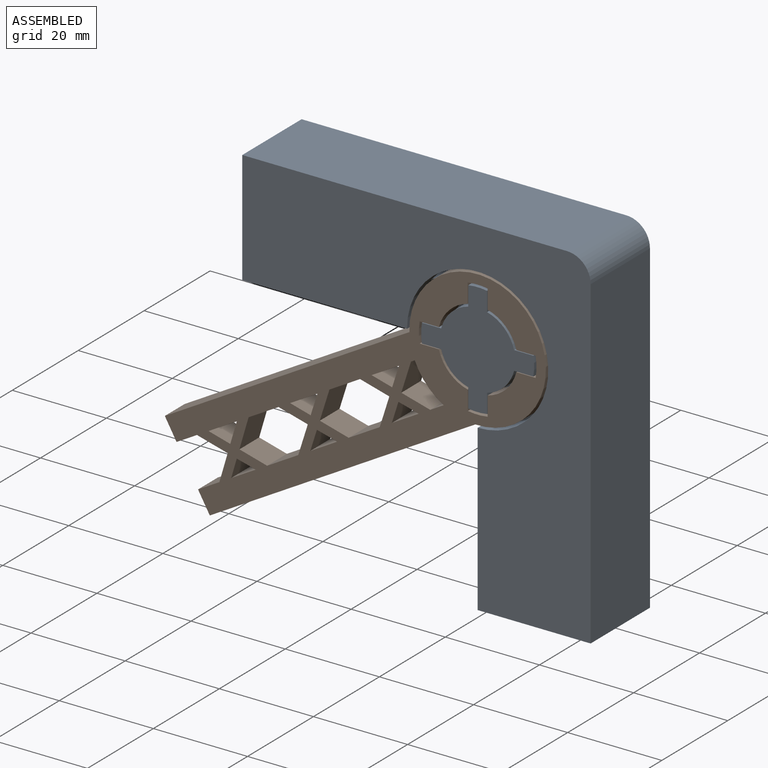
[diagram: assembled view]
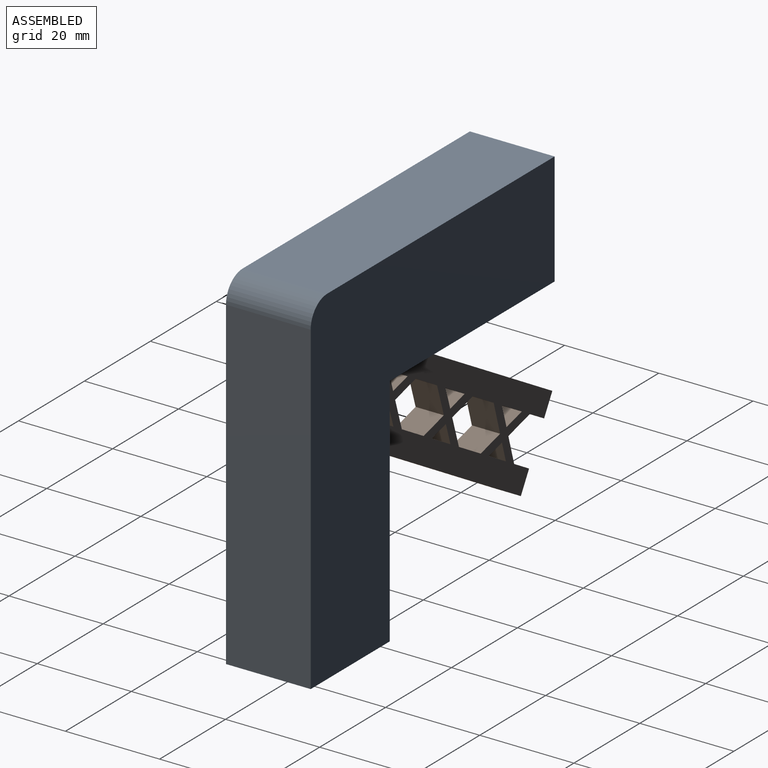
[diagram: assembled view, second angle]
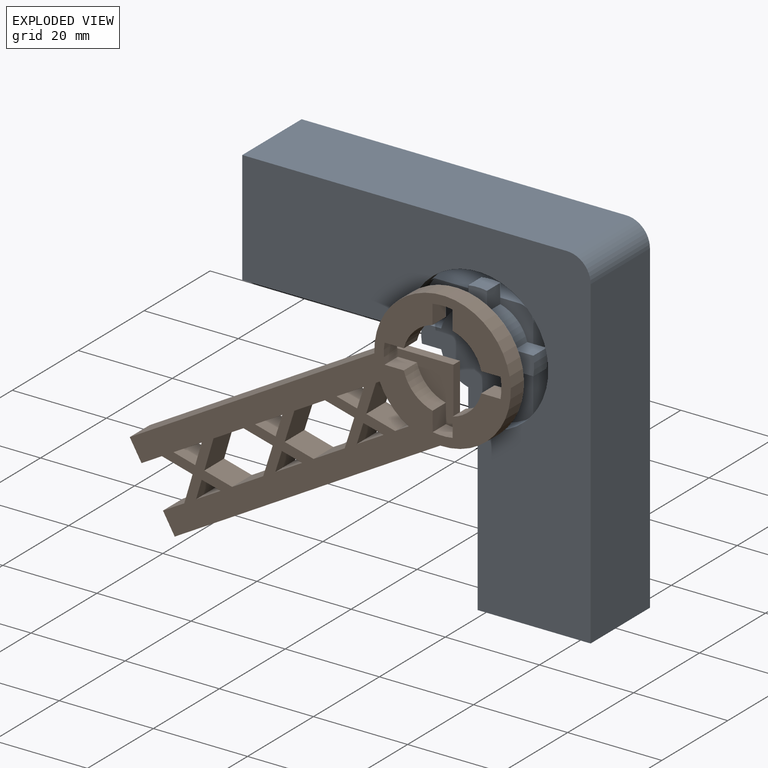
[diagram: exploded view]
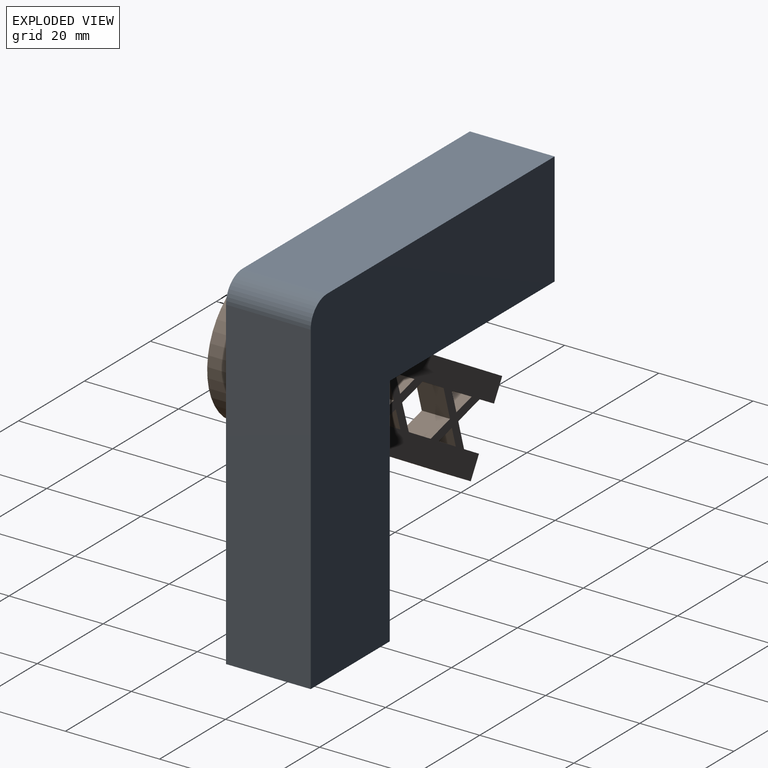
[diagram: exploded view, second angle]
ASSEMBLY  parts=2 mates=2
PART A: 52 faces, bbox 74x18x74 mm
  f0: plane 7x7mm, normal (0,1,0), area 24.5mm2, adj f6,f23,f24,f36,f40,f43
  f1: plane 13x9mm, normal (0,1,0), area 65.9mm2, adj f3,f9,f23,f34,f44,f46,f48
  f2: cylinder r=8mm len=5.75mm, axis (0,-1,0), area 34.1mm2, adj f35,f37,f47,f50
  f3: cylinder r=8mm len=5.75mm, axis (0,-1,0), area 34.1mm2, adj f1,f37,f44,f46
  f4: cylinder r=8mm len=5.75mm, axis (0,-1,0), area 34.1mm2, adj f5,f37,f39,f49
  f5: plane 13x9mm, normal (0,1,0), area 65.9mm2, adj f4,f10,f24,f34,f39,f49,f51
  f6: cylinder r=3mm len=11mm, axis (0,1,0), area 51.8mm2, adj f0,f23,f24,f27
  f7: plane 24x18mm, normal (1,0,0), area 252mm2, adj f10,f11,f15,f16,f17,f19,f20,f21
  f8: plane 24x18mm, normal (0,0,-1), area 252mm2, adj f9,f13,f14,f16,f17,f18,f20,f21
  f9: plane 50x6mm, normal (1,0,0), area 240mm2, adj f1,f8,f10,f17,f20,f34,f35
  f10: plane 50x6mm, normal (0,0,-1), area 240mm2, adj f5,f7,f9,f17,f20,f34,f35
  f11: plane 69x18mm, normal (0,0,1), area 1242mm2, adj f7,f12,f16,f17
  f12: cylinder r=5mm len=18mm, axis (0,1,0), area 141.4mm2, adj f11,f13,f16,f17
  f13: plane 69x18mm, normal (-1,0,0), area 1242mm2, adj f8,f12,f16,f17
  f14: plane 50x6mm, normal (1,0,0), area 300mm2, adj f8,f15,f16,f21
  f15: plane 50x6mm, normal (0,0,-1), area 300mm2, adj f7,f14,f16,f21
  f16: plane 74x74mm, normal (0,-1,0), area 2970.6mm2, adj f7,f8,f11,f12,f13,f14,f15
  f17: plane 74x74mm, normal (0,1,0), area 2440.5mm2, adj f7,f8,f9,f10,f11,f12,f13,f34
  f18: plane 56x6mm, normal (1,0,0), area 336mm2, adj f8,f19,f20,f21
  f19: plane 56x6mm, normal (0,0,-1), area 336mm2, adj f7,f18,f20,f21
  f20: plane 56x56mm, normal (0,-1,0), area 636mm2, adj f7,f8,f9,f10,f18,f19
  f21: plane 56x56mm, normal (0,1,0), area 636mm2, adj f7,f8,f14,f15,f18,f19
  f22: plane 68x12mm, normal (1,0,0), area 816mm2, adj f8,f26,f27,f28
  f23: plane 56x12mm, normal (-1,0,0), area 654mm2, adj f0,f1,f6,f8,f27,f28,f34,f45
  f24: plane 56x12mm, normal (0,0,1), area 654mm2, adj f0,f5,f6,f7,f27,f28,f34,f41
  f25: plane 68x12mm, normal (0,0,-1), area 816mm2, adj f7,f26,f27,f28
  f26: cylinder r=3mm len=12mm, axis (0,1,0), area 56.5mm2, adj f22,f25,f27,f28
  f27: plane 71x71mm, normal (0,1,0), area 1361.5mm2, adj f6,f7,f8,f22,f23,f24,f25,f26
  f28: plane 71x71mm, normal (0,-1,0), area 1163.2mm2, adj f7,f8,f22,f23,f24,f25,f26,f29
  f29: cylinder r=3.55mm len=12mm, axis (0,1,0), area 268mm2, adj f27,f28
  f30: cylinder r=3.55mm len=12mm, axis (0,1,0), area 268mm2, adj f27,f28
  f31: cylinder r=3.55mm len=12mm, axis (0,1,0), area 268mm2, adj f27,f28
  f32: cylinder r=3.55mm len=12mm, axis (0,1,0), area 268mm2, adj f27,f28
  f33: cylinder r=3.55mm len=12mm, axis (0,1,0), area 268mm2, adj f27,f28
  f34: cylinder r=15mm len=30mm, axis (0,1,0), area 231.4mm2, adj f1,f5,f9,f10,f17,f23,f24,f28
  f35: plane 12x12mm, normal (0,-1,0), area 66.4mm2, adj f2,f9,f10,f47,f48,f50,f51
  f36: cylinder r=8mm len=5.75mm, axis (0,-1,0), area 34.1mm2, adj f0,f37,f40,f43
  f37: plane 24x24mm, normal (0,1,0), area 265.5mm2, adj f2,f3,f4,f36,f38,f39,f40,f42
  f38: cylinder r=12mm len=4mm, axis (0,1,0), area 16.1mm2, adj f37,f39,f40,f41
  f39: plane 4.09x4mm, normal (1,0,0), area 16.3mm2, adj f4,f5,f37,f38,f41
  f40: plane 4.09x4mm, normal (-1,0,0), area 16.3mm2, adj f0,f36,f37,f38,f41
  f41: plane 4x3mm, normal (0,-1,0), area 11.8mm2, adj f24,f38,f39,f40
  f42: cylinder r=12mm len=4mm, axis (0,1,0), area 16.1mm2, adj f37,f43,f44,f45
  f43: plane 4.09x4mm, normal (0,0,1), area 16.3mm2, adj f0,f36,f37,f42,f45
  f44: plane 4.09x4mm, normal (0,0,-1), area 16.3mm2, adj f1,f3,f37,f42,f45
  f45: plane 4x3mm, normal (0,-1,0), area 11.8mm2, adj f23,f42,f43,f44
  f46: plane 4.09x4mm, normal (-1,0,0), area 16.3mm2, adj f1,f3,f37,f48
  f47: plane 4.09x4mm, normal (1,0,0), area 16.3mm2, adj f2,f35,f37,f48
  f48: cylinder r=12mm len=4mm, axis (0,1,0), area 16.1mm2, adj f1,f35,f37,f46,f47
  f49: plane 4.09x4mm, normal (0,0,1), area 16.3mm2, adj f4,f5,f37,f51
  f50: plane 4.09x4mm, normal (0,0,-1), area 16.3mm2, adj f2,f35,f37,f51
  f51: cylinder r=12mm len=4mm, axis (0,1,0), area 16.1mm2, adj f5,f35,f37,f49,f50
PART B: 66 faces, bbox 81x6x61.6 mm
  f0: cylinder r=14.5mm len=29mm, axis (0,1,0), area 277.3mm2, adj f2,f3,f28,f65
  f1: cylinder r=14.5mm len=6.96mm, axis (0,1,0), area 56.8mm2, adj f3,f23,f24,f27
  f2: plane 29x29mm, normal (0,1,0), area 275.8mm2, adj f0,f7,f8,f9,f10,f11,f12,f13
  f3: plane 80.95x61.55mm, normal (0,-1,0), area 1117.5mm2, adj f0,f1,f4,f5,f6,f7,f8,f9
  f4: plane 4.09x4mm, normal (0,0,1), area 16.4mm2, adj f3,f5,f19,f20
  f5: cylinder r=8.5mm len=6.11mm, axis (0,-1,0), area 36.2mm2, adj f3,f4,f6,f20
  f6: plane 4.1x4mm, normal (1,0,0.01), area 16.4mm2, adj f3,f5,f7,f20
  f7: cylinder r=12.5mm len=4.21mm, axis (0,-1,0), area 16.9mm2, adj f2,f3,f6,f8,f20
  f8: plane 4.09x4mm, normal (-1,0,0), area 16.4mm2, adj f2,f3,f7,f9
  f9: cylinder r=8.5mm len=6.11mm, axis (0,-1,0), area 36.2mm2, adj f2,f3,f8,f10
  f10: plane 4.09x4mm, normal (0,0,1), area 16.4mm2, adj f2,f3,f9,f11
  f11: cylinder r=12.5mm len=4.25mm, axis (0,-1,0), area 17.1mm2, adj f2,f3,f10,f12
  f12: plane 4.09x4mm, normal (0,0,-1), area 16.4mm2, adj f2,f3,f11,f13
  f13: cylinder r=8.5mm len=6.11mm, axis (0,-1,0), area 36.2mm2, adj f2,f3,f12,f14
  f14: plane 4.09x4mm, normal (-1,0,0), area 16.4mm2, adj f2,f3,f13,f15
  f15: cylinder r=12.5mm len=4.25mm, axis (0,-1,0), area 17.1mm2, adj f2,f3,f14,f16
  f16: plane 4.09x4mm, normal (1,0,0), area 16.4mm2, adj f2,f3,f15,f17
  f17: cylinder r=8.5mm len=6.11mm, axis (0,-1,0), area 36.2mm2, adj f2,f3,f16,f18
  f18: plane 4.09x4mm, normal (0,0,-1), area 16.4mm2, adj f2,f3,f17,f19
  f19: cylinder r=12.5mm len=4.25mm, axis (0,-1,0), area 17.1mm2, adj f2,f3,f4,f18,f20
  f20: plane 11.99x11.99mm, normal (0,-1,0), area 61.5mm2, adj f4,f5,f6,f7,f19,f21,f22
  f21: plane 13.99x2mm, normal (1,0,0), area 28mm2, adj f2,f20,f22,f23,f28
  f22: plane 13.99x2mm, normal (0,0,1), area 28mm2, adj f2,f20,f21,f23,f65
  f23: plane 65.95x46.55mm, normal (0,1,0), area 903.3mm2, adj f1,f21,f22,f24,f25,f26,f27,f28
  f24: plane 6x0.79mm, normal (0.5,0,-0.87), area 5.5mm2, adj f1,f3,f23,f25
  f25: plane 6.53x6mm, normal (0.95,0,-0.3), area 41.1mm2, adj f3,f23,f24,f26
  f26: plane 6.14x6mm, normal (0.26,0,0.97), area 38.1mm2, adj f3,f23,f25,f27
  f27: plane 6x2.88mm, normal (-0.5,0,0.87), area 20mm2, adj f1,f3,f23,f26
  f28: plane 56.4x32.56mm, normal (0.5,0,-0.87), area 390.7mm2, adj f0,f3,f21,f23,f29
  f29: plane 6x4.33mm, normal (-0.87,0,-0.5), area 30mm2, adj f3,f23,f28,f30
  f30: plane 6x4.53mm, normal (-0.5,0,0.87), area 31.4mm2, adj f3,f23,f29,f31
  f31: plane 6.03x6mm, normal (-0.96,0,0.28), area 37.7mm2, adj f3,f23,f30,f32
  f32: plane 6.52x6mm, normal (-0.26,0,-0.97), area 40.5mm2, adj f3,f23,f31,f33
  f33: plane 6x4.33mm, normal (0.5,0,-0.87), area 30mm2, adj f3,f23,f32,f34
  f34: plane 6x4.33mm, normal (-0.87,0,-0.5), area 30mm2, adj f3,f23,f33,f65
  f35: plane 6x5.81mm, normal (0.5,0,-0.87), area 40.2mm2, adj f3,f23,f36,f57
  f36: plane 6x4.38mm, normal (0.26,0,0.97), area 27.2mm2, adj f3,f23,f35,f57
  f37: plane 6x5.81mm, normal (0.5,0,-0.87), area 40.2mm2, adj f3,f23,f38,f58
  f38: plane 6x4.38mm, normal (0.26,0,0.97), area 27.2mm2, adj f3,f23,f37,f58
  f39: plane 6.01x6mm, normal (0.5,0,-0.87), area 41.6mm2, adj f3,f23,f40,f59
  f40: plane 6x4.63mm, normal (0.26,0,0.97), area 28.8mm2, adj f3,f23,f39,f59
  f41: plane 6x4.06mm, normal (0.96,0,-0.28), area 25.4mm2, adj f3,f23,f42,f60
  f42: plane 6x5.18mm, normal (-0.5,0,0.87), area 35.9mm2, adj f3,f23,f41,f60
  f43: plane 6.68x6mm, normal (0.96,0,-0.28), area 41.7mm2, adj f3,f23,f44,f61
  f44: plane 6x5.88mm, normal (0.26,0,0.97), area 36.5mm2, adj f3,f23,f43,f45
  f45: plane 6.61x6mm, normal (-0.5,0,0.87), area 45.8mm2, adj f3,f23,f44,f46
  f46: plane 6.44x6mm, normal (-0.95,0,0.3), area 40.5mm2, adj f3,f23,f45,f47
  f47: plane 6.22x6mm, normal (-0.26,0,-0.97), area 38.7mm2, adj f3,f23,f46,f61
  f48: plane 6x4.44mm, normal (0.95,0,-0.3), area 27.9mm2, adj f3,f23,f49,f62
  f49: plane 6x5.69mm, normal (-0.5,0,0.87), area 39.4mm2, adj f3,f23,f48,f62
  f50: plane 6.53x6mm, normal (0.95,0,-0.3), area 41.1mm2, adj f3,f23,f51,f63
  f51: plane 6.14x6mm, normal (0.26,0,0.97), area 38.1mm2, adj f3,f23,f50,f52
  f52: plane 6.61x6mm, normal (-0.5,0,0.87), area 45.8mm2, adj f3,f23,f51,f53
  f53: plane 6.44x6mm, normal (-0.95,0,0.3), area 40.5mm2, adj f3,f23,f52,f54
  f54: plane 6.22x6mm, normal (-0.26,0,-0.97), area 38.7mm2, adj f3,f23,f53,f63
  f55: plane 6x4.44mm, normal (0.95,0,-0.3), area 27.9mm2, adj f3,f23,f56,f64
  f56: plane 6x5.69mm, normal (-0.5,0,0.87), area 39.4mm2, adj f3,f23,f55,f64
  f57: plane 6x4.53mm, normal (-0.95,0,0.3), area 28.5mm2, adj f3,f23,f35,f36
  f58: plane 6x4.53mm, normal (-0.95,0,0.3), area 28.5mm2, adj f3,f23,f37,f38
  f59: plane 6x4.71mm, normal (-0.96,0,0.28), area 29.4mm2, adj f3,f23,f39,f40
  f60: plane 6x4mm, normal (-0.26,0,-0.97), area 24.8mm2, adj f3,f23,f41,f42
  f61: plane 6.35x6mm, normal (0.5,0,-0.87), area 44mm2, adj f3,f23,f43,f47
  f62: plane 6x4.29mm, normal (-0.26,0,-0.97), area 26.6mm2, adj f3,f23,f48,f49
  f63: plane 6.5x6mm, normal (0.5,0,-0.87), area 45mm2, adj f3,f23,f50,f54
  f64: plane 6x4.29mm, normal (-0.26,0,-0.97), area 26.6mm2, adj f3,f23,f55,f56
  f65: plane 51.96x30mm, normal (-0.5,0,0.87), area 360mm2, adj f0,f3,f22,f23,f34
PLACE A rot(axis=(0,0,-1),180deg) t=(0.43,-1.8,0.56)mm
PLACE B t=(0.43,-6.8,0.56)mm
MATE planar B.f20 <-> A.f35  axis (0,-1,0) through (-3.83,-6.8,-3.69)mm
MATE slider B.f13 <-> A.f2  axis (0,-1,0) through (0.43,-8.8,0.56)mm
